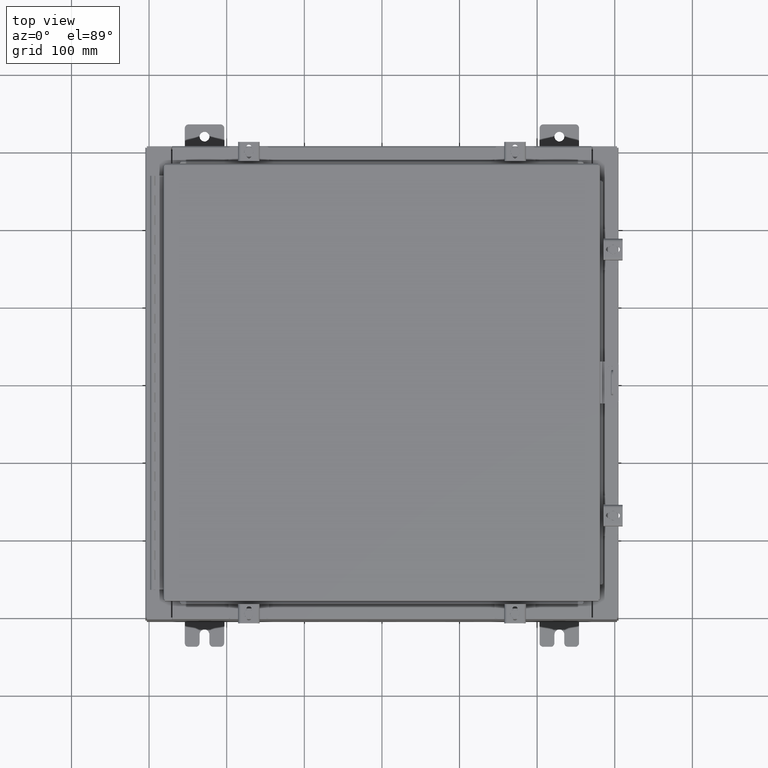
[diagram: clean part render]
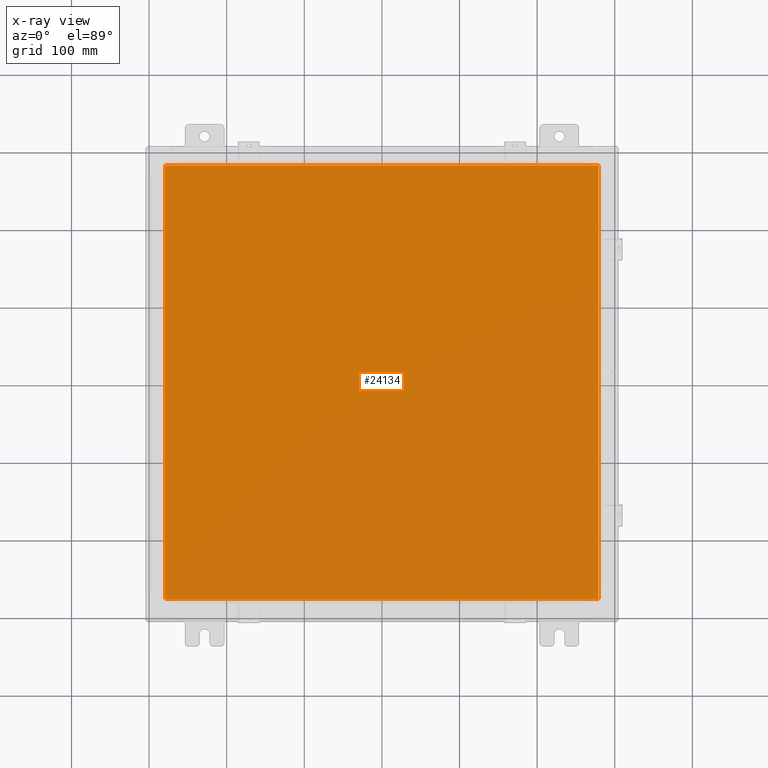
[diagram: x-ray — body ghosted, one internal face saturated and labeled with its STEP entity id]
A machine part, top view, then the same camera in x-ray: the body is ghosted and one INTERNAL B-rep face — a face not visible from any outside direction — is saturated and labeled: STEP entity #24134.
In plain terms, the highlighted planar face has unit normal (0, 0, -1).
Its self-contained STEP definition (entity closure, byte-faithful):
#156 = VECTOR ( 'NONE', #16507, 39.37007874015748100 ) ;
#559 = LINE ( 'NONE', #20569, #18013 ) ;
#609 = CARTESIAN_POINT ( 'NONE',  ( 0.0000000000000000000, 0.0000000000000000000, -0.07470000000000015500 ) ) ;
#1041 = VERTEX_POINT ( 'NONE', #8591 ) ;
#3069 = DIRECTION ( 'NONE',  ( -1.000000000000000000, 0.0000000000000000000, -0.0000000000000000000 ) ) ;
#3400 = FACE_OUTER_BOUND ( 'NONE', #32108, .T. ) ;
#4118 = CARTESIAN_POINT ( 'NONE',  ( -10.99030000000000000, -11.00630000000000100, -0.07469999999999907300 ) ) ;
#4593 = CARTESIAN_POINT ( 'NONE',  ( 10.99029999999999600, -11.00630000000000100, -0.07470000000000015500 ) ) ;
#5648 = LINE ( 'NONE', #4593, #9908 ) ;
#7717 = CARTESIAN_POINT ( 'NONE',  ( -10.99030000000000500, 11.00629999999999600, -0.07470000000000125200 ) ) ;
#8591 = CARTESIAN_POINT ( 'NONE',  ( -10.99030000000000000, 11.00629999999999600, -0.07470000000000015500 ) ) ;
#8720 = CARTESIAN_POINT ( 'NONE',  ( 10.99029999999999600, -11.00630000000000100, -0.07470000000000015500 ) ) ;
#9908 = VECTOR ( 'NONE', #19516, 39.37007874015748100 ) ;
#10365 = AXIS2_PLACEMENT_3D ( 'NONE', #609, #17953, #3069 ) ;
#11061 = VECTOR ( 'NONE', #25127, 39.37007874015748100 ) ;
#11834 = LINE ( 'NONE', #7717, #11061 ) ;
#14430 = ORIENTED_EDGE ( 'NONE', *, *, #27290, .F. ) ;
#14555 = VERTEX_POINT ( 'NONE', #27285 ) ;
#15428 = PLANE ( 'NONE',  #10365 ) ;
#16507 = DIRECTION ( 'NONE',  ( 1.000000000000000000, -0.0000000000000000000, -0.0000000000000000000 ) ) ;
#17953 = DIRECTION ( 'NONE',  ( 0.0000000000000000000, 0.0000000000000000000, -1.000000000000000000 ) ) ;
#18013 = VECTOR ( 'NONE', #25551, 39.37007874015748100 ) ;
#18758 = ORIENTED_EDGE ( 'NONE', *, *, #27479, .F. ) ;
#19516 = DIRECTION ( 'NONE',  ( 0.0000000000000000000, 1.000000000000000000, 0.0000000000000000000 ) ) ;
#20492 = EDGE_CURVE ( 'NONE', #32181, #32026, #5648, .T. ) ;
#20569 = CARTESIAN_POINT ( 'NONE',  ( 10.99030000000000000, 11.00629999999999600, -0.07470000000000015500 ) ) ;
#20667 = EDGE_CURVE ( 'NONE', #1041, #14555, #11834, .T. ) ;
#24134 = ADVANCED_FACE ( 'NONE', ( #3400 ), #15428, .T. ) ;
#25127 = DIRECTION ( 'NONE',  ( 0.0000000000000000000, -1.000000000000000000, 0.0000000000000000000 ) ) ;
#25551 = DIRECTION ( 'NONE',  ( -1.000000000000000000, -0.0000000000000000000, -0.0000000000000000000 ) ) ;
#25772 = LINE ( 'NONE', #4118, #156 ) ;
#27285 = CARTESIAN_POINT ( 'NONE',  ( -10.99030000000000000, -11.00630000000000100, -0.07470000000000015500 ) ) ;
#27290 = EDGE_CURVE ( 'NONE', #32026, #1041, #559, .T. ) ;
#27479 = EDGE_CURVE ( 'NONE', #14555, #32181, #25772, .T. ) ;
#29342 = ORIENTED_EDGE ( 'NONE', *, *, #20492, .F. ) ;
#29780 = CARTESIAN_POINT ( 'NONE',  ( 10.99029999999999600, 11.00629999999999600, -0.07470000000000015500 ) ) ;
#30947 = ORIENTED_EDGE ( 'NONE', *, *, #20667, .F. ) ;
#32026 = VERTEX_POINT ( 'NONE', #29780 ) ;
#32108 = EDGE_LOOP ( 'NONE', ( #29342, #18758, #30947, #14430 ) ) ;
#32181 = VERTEX_POINT ( 'NONE', #8720 ) ;